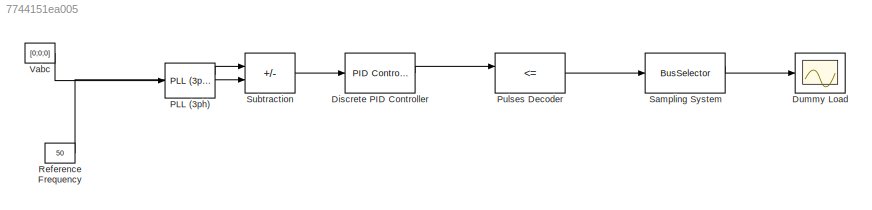
MODEL slx_7744151ea005
KIND model
CONFIG AbsTol = auto
CONFIG EnableMultiTasking = off
CONFIG FixedStep = auto
CONFIG MaxStep = auto
CONFIG MinStep = auto
CONFIG RelTol = 1e-3
CONFIG SampleTimeConstraint = Unconstrained
CONFIG SolverName = VariableStepAuto
CONFIG StartTime = 0.0
CONFIG StopTime = 10.0
BLOCK [Reference] Discrete PID Controller  REF=pid_lib/PID Controller
  Ports = [1, 1]
  SourceBlock = pid_lib/PID Controller
  SourceProductBaseCode = SL
  SourceType = PID 1dof
BLOCK [Scope] Dummy Load
  Floating = off
  NumInputPorts = 1
  Ports = [1]
BLOCK [Reference] PLL (3ph)  REF=spsPLL3phLib/PLL
(3ph)
  Ports = [1, 2]
  SourceBlock = spsPLL3phLib/PLL\n(3ph)
  SourceProductBaseCode = PS
  SourceType = PLL (3ph)
BLOCK [RelationalOperator] Pulses Decoder
  InputSameDT = off
  Operator = <=
  OutDataTypeStr = boolean
  Ports = [2, 1]
  RndMeth = Simplest
BLOCK [Constant] Reference Frequency
  Value = 50
BLOCK [BusSelector] Sampling System
  OutputSignals = signal1,signal2
  Ports = [1, 2]
BLOCK [Sum] Subtraction
  IconShape = rectangular
  Inputs = |+-
  Ports = [2, 1]
BLOCK [Constant] Vabc
  Value = [0;0;0]
LINE Discrete PID Controller:1 -> Pulses Decoder:1
LINE PLL (3ph):1 -> Subtraction:1
LINE Pulses Decoder:1 -> Sampling System:1
LINE Reference Frequency:1 -> Subtraction:2
LINE Sampling System:1 -> Dummy Load:1
LINE Subtraction:1 -> Discrete PID Controller:1
LINE Vabc:1 -> PLL (3ph):1
